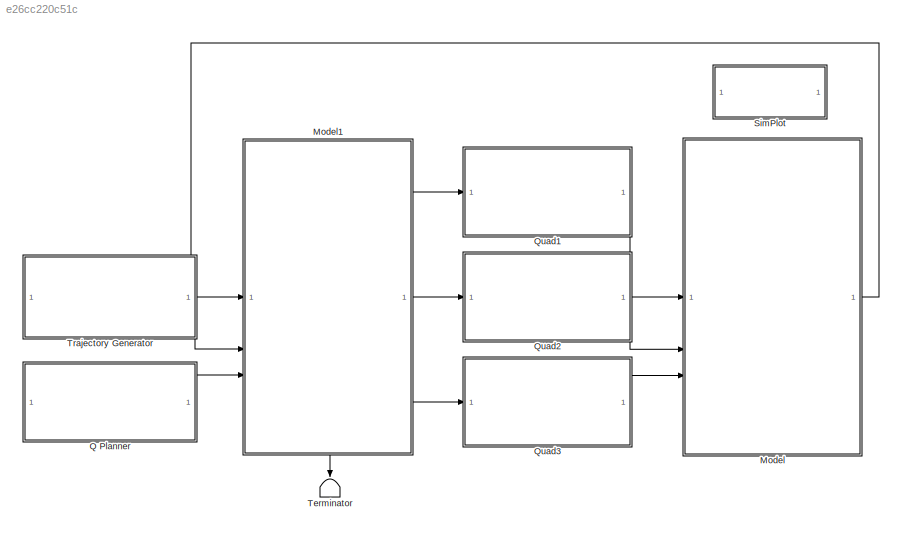
MODEL slx_e26cc220c51c
KIND model
CONFIG StartFcn = run('control_init.m');
BLOCK [ModelReference] Model
  ModelNameDialog = payload_3dof
  ModelReferenceVersion = 1.127
BLOCK [ModelReference] Model1
  ModelNameDialog = control_3dof
  ModelReferenceVersion = 1.753
  PortSchema = {"entries":[{"content":{"sides":[{"content":{"connectorIds":["In1","In2","In3"]},"type":"ConnectorPlacement.EquallySpacedRectSide","uuid":"e12b5daf-d2ec-48ee-9b19-ee63e28f1a05"},{"content":{"connectorIds":["Out1","Out2","Out3"],"side":"RIGHT"},"type":"ConnectorPlacement.EquallySpacedRectSide","uuid":"99052b8d-ebcb-4da1-9dc2-cbc0915c7e94"},{"content":{"side":"TOP"},"type":"ConnectorPlacement.Equall...<+398ch>
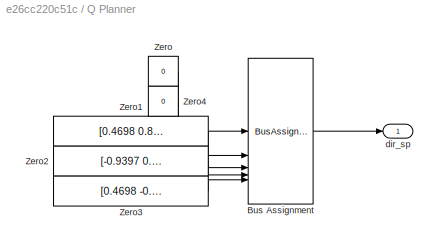
BLOCK [SubSystem] Q Planner
BLOCK [BusAssignment] Q Planner/Bus Assignment
  AssignedSignals = timestamp,q_sp1,q_sp2,q_sp3
BLOCK [Constant] Q Planner/Zero
  OutDataTypeStr = Bus: DirCmd_In_Bus
  Value = 0
BLOCK [Constant] Q Planner/Zero1
  OutDataTypeStr = Inherit: Inherit via back propagation
  Value = [0.4698 0.8138 0.3420]'
BLOCK [Constant] Q Planner/Zero2
  OutDataTypeStr = Inherit: Inherit via back propagation
  Value = [-0.9397 0.0 0.3420]'
BLOCK [Constant] Q Planner/Zero3
  OutDataTypeStr = Inherit: Inherit via back propagation
  Value = [0.4698 -0.8138 0.3420]'
BLOCK [Constant] Q Planner/Zero4
  OutDataTypeStr = Inherit: Inherit via back propagation
  Value = 0
BLOCK [Outport] Q Planner/dir_sp
BLOCK [ModelReference] Quad1
  ModelNameDialog = quadrotors.slx
  ModelReferenceVersion = 1.86
BLOCK [ModelReference] Quad2
  ModelNameDialog = quadrotors.slx
  ModelReferenceVersion = 1.86
BLOCK [ModelReference] Quad3
  ModelNameDialog = quadrotors.slx
  ModelReferenceVersion = 1.86
BLOCK [SubSystem] SimPlot
  OpenFcn = run('simplot.m');
BLOCK [Terminator] Terminator
  NameLocation = left
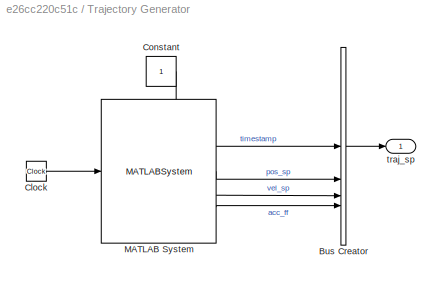
BLOCK [SubSystem] Trajectory Generator
BLOCK [BusCreator] Trajectory Generator/Bus Creator
  DisplayOption = bar
  InheritFromInputs = on
  Inputs = 4
  OutDataTypeStr = Bus: TrajCmd_In_Bus
BLOCK [Clock] Trajectory Generator/Clock
BLOCK [Constant] Trajectory Generator/Constant
  OutDataTypeStr = Inherit: Inherit via back propagation
BLOCK [MATLABSystem] Trajectory Generator/MATLAB System
  MaskDisplay = disp(['Trajectory' char(10) 'Generator']);\nport_label('input',1,'time');\nport_label('output',1,'pos');\nport_label('output',2,'vel');\nport_label('output',3,'acc');
  MaskType = traj_generator
  SimulateUsing = Code generation
  System = traj_generator
  traj_type = circle
BLOCK [Outport] Trajectory Generator/traj_sp
LINE Model1:1 -> Quad1:1
LINE Model1:2 -> Quad2:1
LINE Model1:3 -> Quad3:1
LINE Model1:4 -> Terminator:1
LINE Model:1 -> Model1:1
LINE Q Planner/Bus Assignment:1 -> Q Planner/dir_sp:1
LINE Q Planner/Zero1:1 -> Q Planner/Bus Assignment:3
LINE Q Planner/Zero2:1 -> Q Planner/Bus Assignment:4
LINE Q Planner/Zero3:1 -> Q Planner/Bus Assignment:5
LINE Q Planner/Zero4:1 -> Q Planner/Bus Assignment:2
LINE Q Planner/Zero:1 -> Q Planner/Bus Assignment:1
LINE Q Planner:1 -> Model1:3
LINE Quad1:1 -> Model:1
LINE Quad2:1 -> Model:2
LINE Quad3:1 -> Model:3
LINE Trajectory Generator/Bus Creator:1 -> Trajectory Generator/traj_sp:1
LINE Trajectory Generator/Clock:1 -> Trajectory Generator/MATLAB System:1
LINE Trajectory Generator/Constant:1 -> Trajectory Generator/Bus Creator:1
LINE Trajectory Generator/MATLAB System:1 -> Trajectory Generator/Bus Creator:2
LINE Trajectory Generator/MATLAB System:2 -> Trajectory Generator/Bus Creator:3
LINE Trajectory Generator/MATLAB System:3 -> Trajectory Generator/Bus Creator:4
LINE Trajectory Generator:1 -> Model1:2
